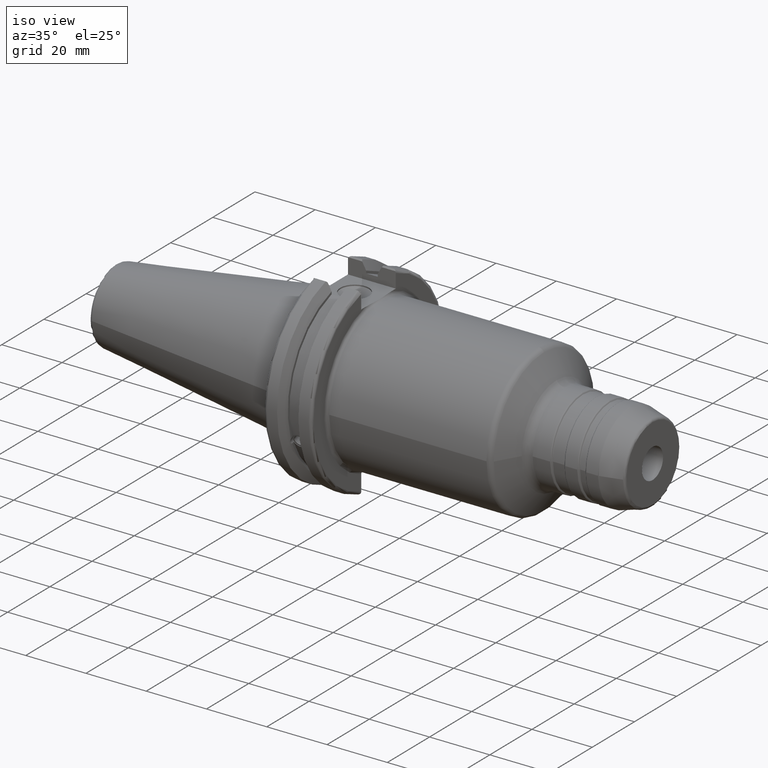
[diagram: clean part render]
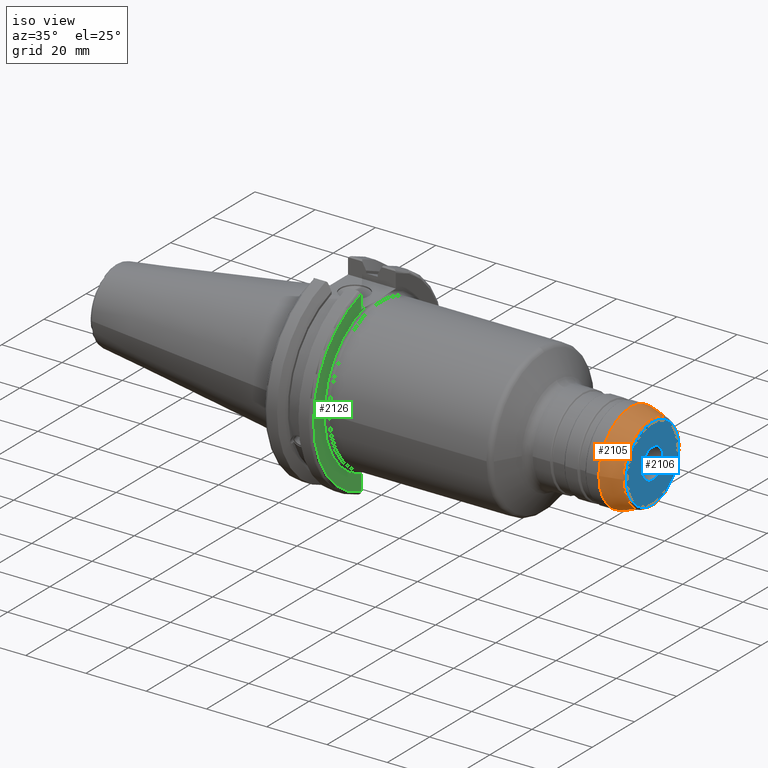
[diagram: same view with three faces highlighted in distinct colors, each labeled with its STEP entity id]
A machine part, iso view with three faces highlighted in distinct colors.
Their STEP definitions:

[orange] entity #2105 — the highlighted conical surface has half-angle 15 deg.
#153=CONICAL_SURFACE('',#2249,14.,0.261799387799148);
#176=FACE_OUTER_BOUND('',#286,.T.);
#286=EDGE_LOOP('',(#1407,#1408,#1409,#1410,#1411,#1412,#1413,#1414));
#406=LINE('',#3373,#502);
#502=VECTOR('',#2589,14.);
#605=CIRCLE('',#2245,13.1588790706481);
#606=CIRCLE('',#2246,13.1588790706481);
#607=CIRCLE('',#2247,13.1588790706481);
#609=CIRCLE('',#2250,14.9659258262891);
#610=CIRCLE('',#2251,14.9659258262891);
#611=CIRCLE('',#2252,14.9659258262891);
#792=VERTEX_POINT('',#3363);
#793=VERTEX_POINT('',#3365);
#794=VERTEX_POINT('',#3367);
#795=VERTEX_POINT('',#3372);
#796=VERTEX_POINT('',#3374);
#797=VERTEX_POINT('',#3376);
#1043=EDGE_CURVE('',#792,#793,#605,.T.);
#1044=EDGE_CURVE('',#793,#794,#606,.T.);
#1045=EDGE_CURVE('',#794,#792,#607,.T.);
#1047=EDGE_CURVE('',#793,#795,#406,.T.);
#1048=EDGE_CURVE('',#796,#795,#609,.T.);
#1049=EDGE_CURVE('',#797,#796,#610,.T.);
#1050=EDGE_CURVE('',#795,#797,#611,.T.);
#1407=ORIENTED_EDGE('',*,*,#1045,.F.);
#1408=ORIENTED_EDGE('',*,*,#1044,.F.);
#1409=ORIENTED_EDGE('',*,*,#1047,.T.);
#1410=ORIENTED_EDGE('',*,*,#1048,.F.);
#1411=ORIENTED_EDGE('',*,*,#1049,.F.);
#1412=ORIENTED_EDGE('',*,*,#1050,.F.);
#1413=ORIENTED_EDGE('',*,*,#1047,.F.);
#1414=ORIENTED_EDGE('',*,*,#1043,.F.);
#2105=ADVANCED_FACE('',(#176),#153,.T.);
#2245=AXIS2_PLACEMENT_3D('',#3366,#2579,#2580);
#2246=AXIS2_PLACEMENT_3D('',#3368,#2581,#2582);
#2247=AXIS2_PLACEMENT_3D('',#3369,#2583,#2584);
#2249=AXIS2_PLACEMENT_3D('',#3371,#2587,#2588);
#2250=AXIS2_PLACEMENT_3D('',#3375,#2590,#2591);
#2251=AXIS2_PLACEMENT_3D('',#3377,#2592,#2593);
#2252=AXIS2_PLACEMENT_3D('',#3378,#2594,#2595);
#2579=DIRECTION('center_axis',(1.,0.,0.));
#2580=DIRECTION('ref_axis',(0.,-1.,3.06161699786838E-17));
#2581=DIRECTION('center_axis',(1.,0.,0.));
#2582=DIRECTION('ref_axis',(0.,-1.,3.06161699786838E-17));
#2583=DIRECTION('center_axis',(1.,0.,0.));
#2584=DIRECTION('ref_axis',(0.,-1.,3.06161699786838E-17));
#2587=DIRECTION('center_axis',(-1.,0.,0.));
#2588=DIRECTION('ref_axis',(0.,1.,0.));
#2589=DIRECTION('',(-0.965925826289069,-0.25881904510252,-3.16961915143175E-17));
#2590=DIRECTION('center_axis',(-1.,0.,0.));
#2591=DIRECTION('ref_axis',(0.,-1.,3.06161699786838E-17));
#2592=DIRECTION('center_axis',(-1.,0.,0.));
#2593=DIRECTION('ref_axis',(0.,-1.,3.06161699786838E-17));
#2594=DIRECTION('center_axis',(-1.,0.,0.));
#2595=DIRECTION('ref_axis',(0.,-1.,3.06161699786838E-17));
#3363=CARTESIAN_POINT('',(109.407055236082,-1.61149791342363E-15,13.1588790706481));
#3365=CARTESIAN_POINT('',(109.407055236082,-13.1588790706481,-1.61149791342363E-15));
#3366=CARTESIAN_POINT('Origin',(109.407055236082,0.,-2.01437239177953E-15));
#3367=CARTESIAN_POINT('',(109.407055236082,13.1588790706481,-8.05748956711814E-16));
#3368=CARTESIAN_POINT('Origin',(109.407055236082,0.,-2.01437239177953E-15));
#3369=CARTESIAN_POINT('Origin',(109.407055236082,0.,-2.01437239177953E-15));
#3371=CARTESIAN_POINT('Origin',(106.267949192431,0.,0.));
#3372=CARTESIAN_POINT('',(102.663064932377,-14.9659258262891,-1.83279731594416E-15));
#3373=CARTESIAN_POINT('',(106.267949192431,-14.,-1.71450551880629E-15));
#3374=CARTESIAN_POINT('',(102.663064932377,14.9659258262891,-4.5819932898604E-15));
#3375=CARTESIAN_POINT('Origin',(102.663064932377,0.,-2.2909966449302E-15));
#3376=CARTESIAN_POINT('',(102.663064932377,-1.83279731594416E-15,14.9659258262891));
#3377=CARTESIAN_POINT('Origin',(102.663064932377,0.,-2.2909966449302E-15));
#3378=CARTESIAN_POINT('Origin',(102.663064932377,0.,-2.2909966449302E-15));

[blue] entity #2106 — the highlighted planar face has unit normal (1, 0, 0).
#49=PLANE('',#2253);
#104=FACE_BOUND('',#288,.T.);
#177=FACE_OUTER_BOUND('',#287,.T.);
#287=EDGE_LOOP('',(#1415,#1416));
#288=EDGE_LOOP('',(#1417,#1418));
#603=CIRCLE('',#2243,12.3861384096168);
#608=CIRCLE('',#2248,12.3861384096168);
#612=CIRCLE('',#2254,5.00000000000001);
#613=CIRCLE('',#2255,5.00000000000001);
#790=VERTEX_POINT('',#3360);
#791=VERTEX_POINT('',#3361);
#798=VERTEX_POINT('',#3380);
#799=VERTEX_POINT('',#3381);
#1041=EDGE_CURVE('',#790,#791,#603,.T.);
#1046=EDGE_CURVE('',#791,#790,#608,.T.);
#1051=EDGE_CURVE('',#798,#799,#612,.T.);
#1052=EDGE_CURVE('',#799,#798,#613,.T.);
#1415=ORIENTED_EDGE('',*,*,#1041,.F.);
#1416=ORIENTED_EDGE('',*,*,#1046,.F.);
#1417=ORIENTED_EDGE('',*,*,#1051,.F.);
#1418=ORIENTED_EDGE('',*,*,#1052,.F.);
#2106=ADVANCED_FACE('',(#177,#104),#49,.T.);
#2243=AXIS2_PLACEMENT_3D('',#3362,#2575,#2576);
#2248=AXIS2_PLACEMENT_3D('',#3370,#2585,#2586);
#2253=AXIS2_PLACEMENT_3D('',#3379,#2596,#2597);
#2254=AXIS2_PLACEMENT_3D('',#3382,#2598,#2599);
#2255=AXIS2_PLACEMENT_3D('',#3383,#2600,#2601);
#2575=DIRECTION('center_axis',(-1.,0.,0.));
#2576=DIRECTION('ref_axis',(0.,-1.,1.83697019872103E-16));
#2585=DIRECTION('center_axis',(-1.,0.,0.));
#2586=DIRECTION('ref_axis',(0.,-1.,1.83697019872103E-16));
#2596=DIRECTION('center_axis',(1.,0.,0.));
#2597=DIRECTION('ref_axis',(0.,0.,-1.));
#2598=DIRECTION('center_axis',(1.,0.,0.));
#2599=DIRECTION('ref_axis',(0.,0.,-1.));
#2600=DIRECTION('center_axis',(1.,0.,0.));
#2601=DIRECTION('ref_axis',(0.,0.,-1.));
#3360=CARTESIAN_POINT('',(110.,12.3861384096168,-3.79216118928334E-15));
#3361=CARTESIAN_POINT('',(110.,-1.51686447571333E-15,12.3861384096168));
#3362=CARTESIAN_POINT('Origin',(110.,0.,0.));
#3370=CARTESIAN_POINT('Origin',(110.,0.,0.));
#3379=CARTESIAN_POINT('Origin',(110.,5.00000000000001,0.));
#3380=CARTESIAN_POINT('',(110.,5.00000000000001,0.));
#3381=CARTESIAN_POINT('',(110.,-5.,-6.12323399573677E-16));
#3382=CARTESIAN_POINT('Origin',(110.,0.,0.));
#3383=CARTESIAN_POINT('Origin',(110.,0.,0.));

[green] entity #2126 — the highlighted planar face has unit normal (1, 0, 0).
#50=PLANE('',#2342);
#197=FACE_OUTER_BOUND('',#308,.T.);
#308=EDGE_LOOP('',(#1570,#1571,#1572,#1573,#1574));
#416=LINE('',#3572,#512);
#417=LINE('',#3574,#513);
#418=LINE('',#3577,#514);
#512=VECTOR('',#2785,10.);
#513=VECTOR('',#2786,10.);
#514=VECTOR('',#2789,10.);
#677=CIRCLE('',#2338,25.75);
#681=CIRCLE('',#2343,30.75);
#854=VERTEX_POINT('',#3529);
#856=VERTEX_POINT('',#3541);
#861=VERTEX_POINT('',#3571);
#862=VERTEX_POINT('',#3573);
#863=VERTEX_POINT('',#3575);
#1126=EDGE_CURVE('',#854,#856,#677,.T.);
#1132=EDGE_CURVE('',#854,#861,#416,.T.);
#1133=EDGE_CURVE('',#861,#862,#417,.T.);
#1134=EDGE_CURVE('',#863,#862,#681,.T.);
#1135=EDGE_CURVE('',#863,#856,#418,.T.);
#1570=ORIENTED_EDGE('',*,*,#1126,.F.);
#1571=ORIENTED_EDGE('',*,*,#1132,.T.);
#1572=ORIENTED_EDGE('',*,*,#1133,.T.);
#1573=ORIENTED_EDGE('',*,*,#1134,.F.);
#1574=ORIENTED_EDGE('',*,*,#1135,.T.);
#2126=ADVANCED_FACE('',(#197),#50,.T.);
#2338=AXIS2_PLACEMENT_3D('',#3542,#2775,#2776);
#2342=AXIS2_PLACEMENT_3D('',#3570,#2783,#2784);
#2343=AXIS2_PLACEMENT_3D('',#3576,#2787,#2788);
#2775=DIRECTION('center_axis',(1.,0.,0.));
#2776=DIRECTION('ref_axis',(0.,6.12323399573677E-17,1.));
#2783=DIRECTION('center_axis',(1.,0.,0.));
#2784=DIRECTION('ref_axis',(0.,0.,-1.));
#2785=DIRECTION('',(0.,-1.,0.));
#2786=DIRECTION('',(0.,0.,1.));
#2787=DIRECTION('center_axis',(-1.,0.,0.));
#2788=DIRECTION('ref_axis',(0.,-1.,1.60812264967664E-16));
#2789=DIRECTION('',(0.,0.,1.));
#3529=CARTESIAN_POINT('',(19.05,-6.16948133962656,25.));
#3541=CARTESIAN_POINT('',(19.05,-8.19,-24.4128326910254));
#3542=CARTESIAN_POINT('Origin',(19.05,0.,0.));
#3570=CARTESIAN_POINT('Origin',(19.05,0.,0.));
#3571=CARTESIAN_POINT('',(19.05,-8.19,25.));
#3572=CARTESIAN_POINT('',(19.05,0.,25.));
#3573=CARTESIAN_POINT('',(19.05,-8.19,29.6392712461019));
#3574=CARTESIAN_POINT('',(19.05,-8.19,12.5));
#3575=CARTESIAN_POINT('',(19.05,-8.19,-29.6392712461019));
#3576=CARTESIAN_POINT('Origin',(19.05,0.,0.));
#3577=CARTESIAN_POINT('',(19.05,-8.19,-11.3));